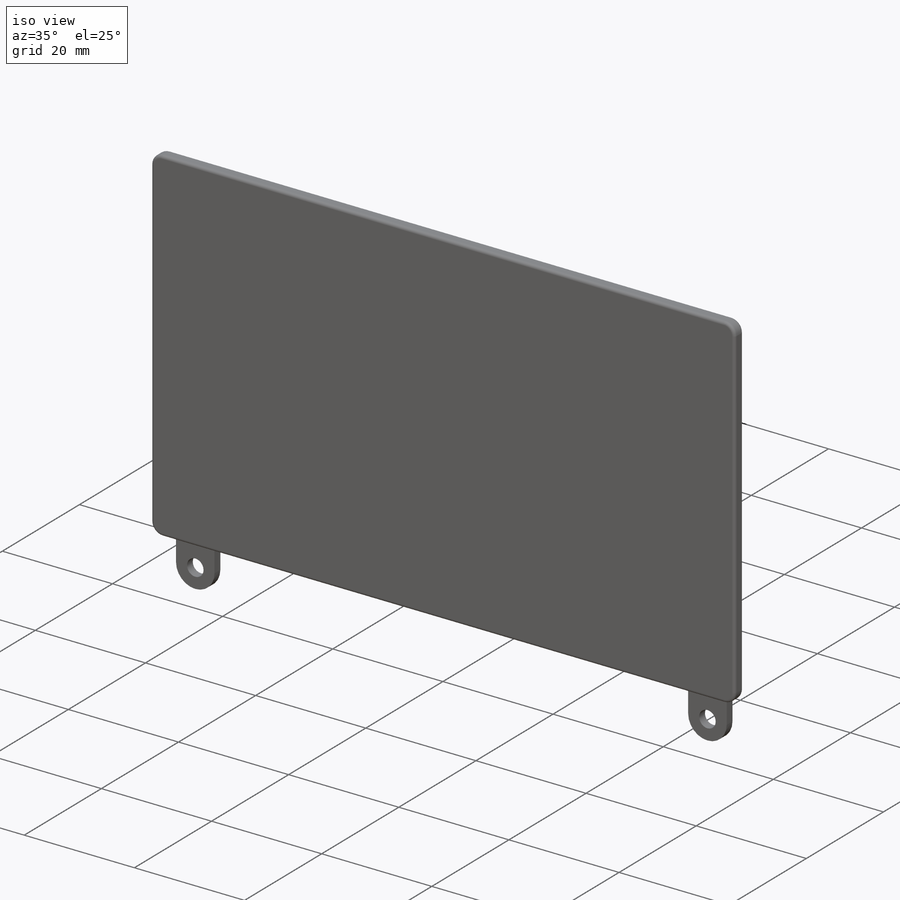
[diagram: iso view]
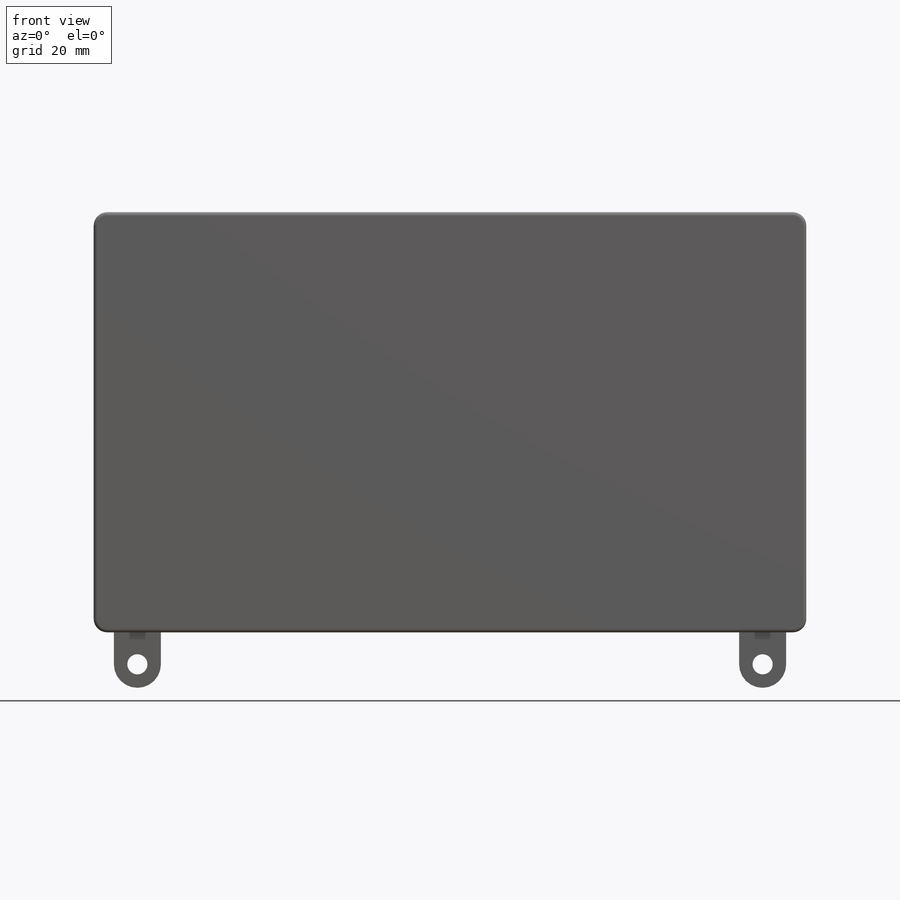
[diagram: front view]
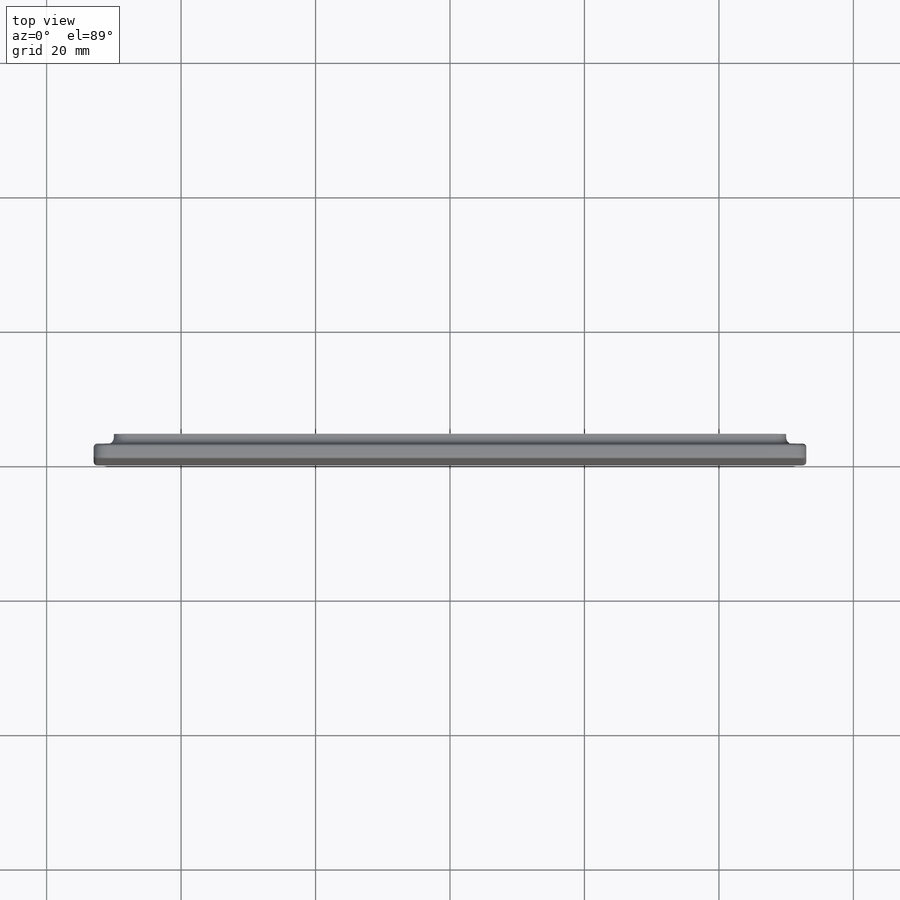
[diagram: top view]
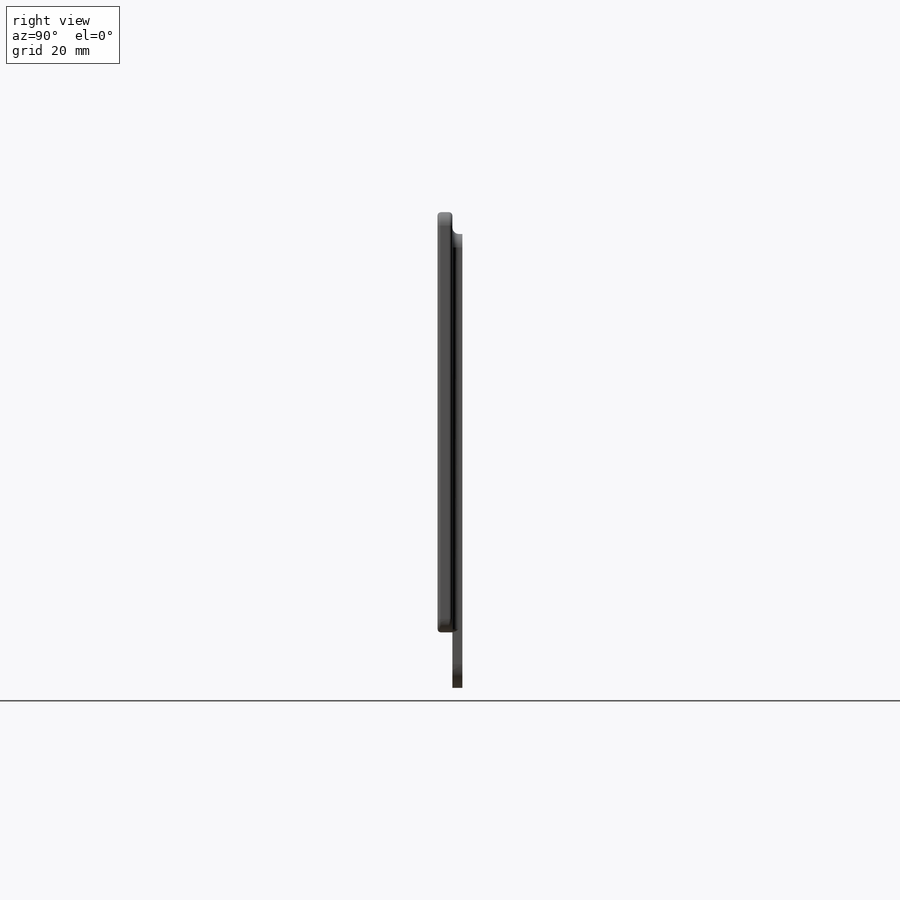
[diagram: right view]
SOLIDWORKS PART (.sldprt)
format: sldprt  version: not decoded by parser v0  size: 315,904 bytes
history: native  units: mm
features: sketch x4, extrude x2, fillet x2, material x1, cut_extrude x1 (+12 scaffold rows collapsed)
feature tree (22):
  scaffold x12  (default folders/planes/origin — collapsed)
  material  "black_polyamide"
  sketch  "dimensions"  dims[D1=62.5mm D2=106.0mm D3=100.0mm D4=56.0mm D5=8.0mm D6=93.0mm]
  sketch  "Sketch2"  dims[D1=2.0mm]
  extrude  "screen"  Depth=2.2mm
  sketch  "Sketch3"  dims[D2=3.0mm D3=2.0mm D4=2.0mm D1=8.0mm]
  extrude  "Boss-Extrude2"  Depth=1.5mm
  sketch  "Sketch4"  dims[D2=3.0mm D1=7.0mm]
  cut_extrude  "Cut-Extrude1"  Depth=2mm
  fillet  "Fillet1"  Radius=1mm
  fillet  "Fillet2"  Radius=0.5mm
decode coverage: 9 of 9 modeling features carry decoded parameters
note: suppression state not decoded; provenance and decode notes live in map.json
